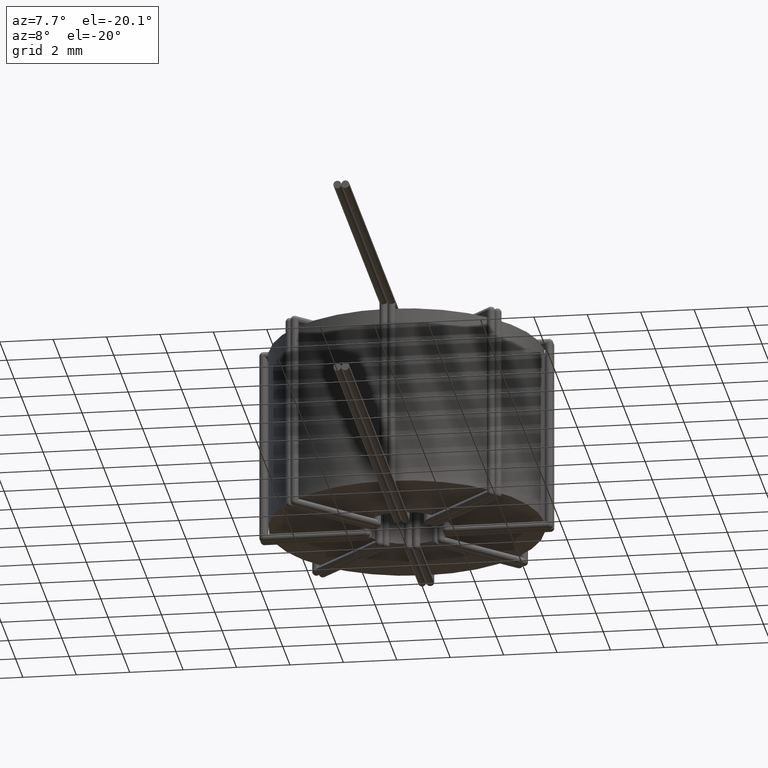
[diagram: clean part render]
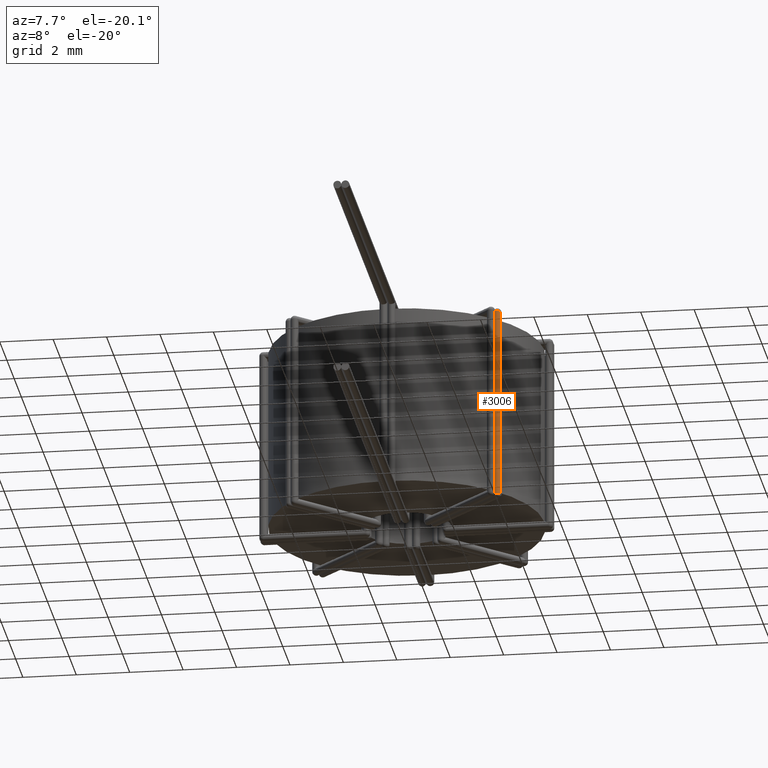
[diagram: same view with one face highlighted and labeled with its STEP entity id]
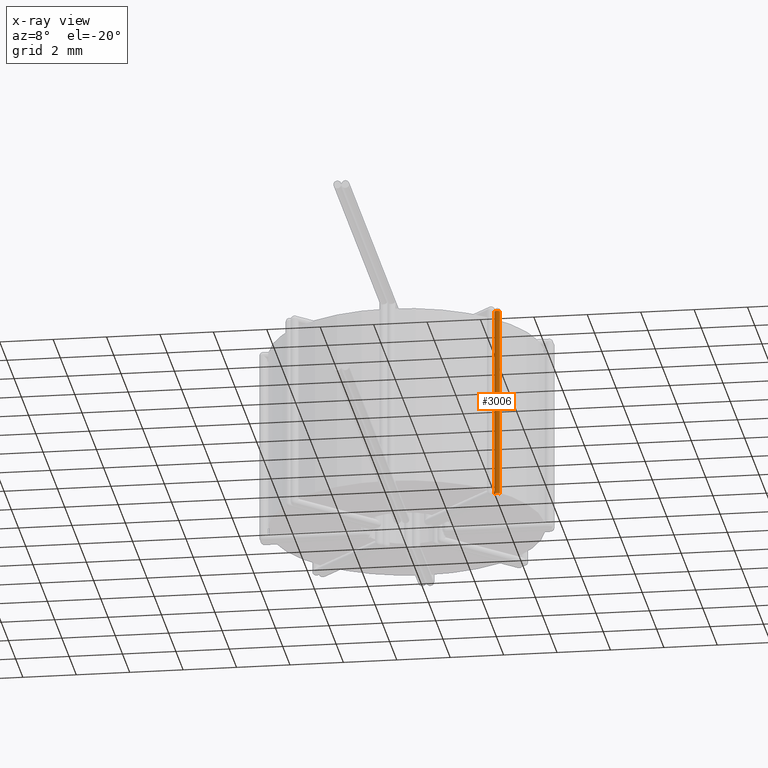
[diagram: x-ray of the same camera — body ghosted, the highlighted face saturated]
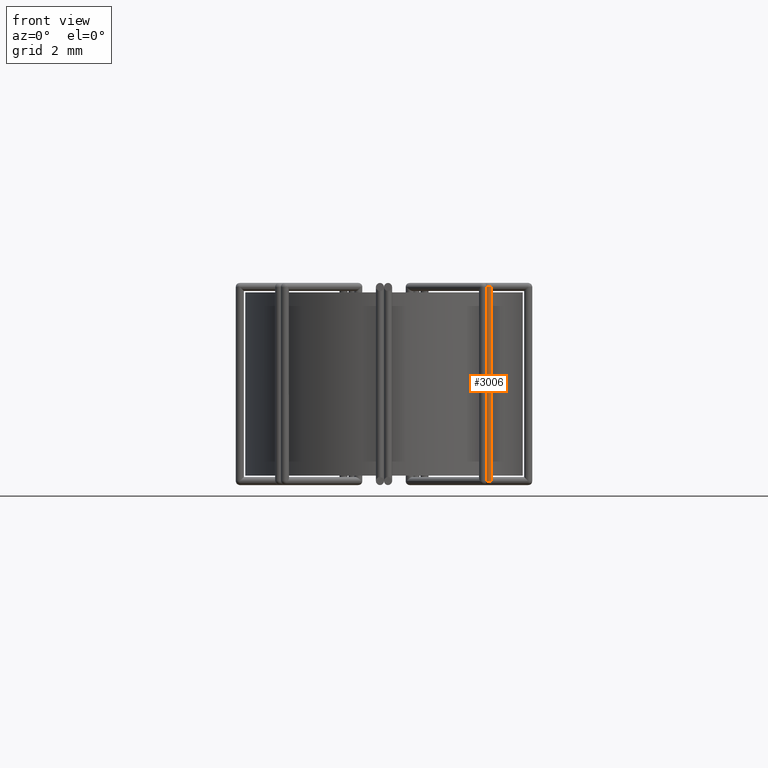
[diagram: same view with one face highlighted and labeled with its STEP entity id]
A machine part, auxiliary view. The second image highlights one B-rep face of the part: STEP entity #3006.
The next image is the same camera in x-ray: the body ghosted, the highlighted face saturated — about 0% of this face is hidden behind the body in this view.
A second angle (front view) of the same face is appended — the face is thin or edge-on in the first view.
In plain terms, the highlighted cylindrical surface (edge-blend (fillet) strip) has radius 0.15 mm, axis along (0, -0, -1).
Its self-contained STEP definition (entity closure, byte-faithful):
#403 = AXIS2_PLACEMENT_3D ( 'NONE', #7300, #7351, #12215 ) ;
#1283 = LINE ( 'NONE', #15095, #5876 ) ;
#1787 = CARTESIAN_POINT ( 'NONE',  ( 3.995153313704012700, -3.783021279348008000, 7.000000000000000000 ) ) ;
#1809 = DIRECTION ( 'NONE',  ( 8.177564888978038500E-017, -8.177564888977952300E-017, -1.000000000000000000 ) ) ;
#1933 = VERTEX_POINT ( 'NONE', #2452 ) ;
#2182 = CYLINDRICAL_SURFACE ( 'NONE', #15563, 0.1499999999999999100 ) ;
#2452 = CARTESIAN_POINT ( 'NONE',  ( 3.783021279348049800, -3.783021279348009800, -0.1999999999999995400 ) ) ;
#2536 = CARTESIAN_POINT ( 'NONE',  ( 3.889087296526030800, -3.676955262170027000, -0.1999999999999995400 ) ) ;
#2830 = DIRECTION ( 'NONE',  ( -8.177564888978038500E-017, 8.177564888977952300E-017, 1.000000000000000000 ) ) ;
#3006 = ADVANCED_FACE ( 'NONE', ( #8662 ), #2182, .T. ) ;
#3103 = DIRECTION ( 'NONE',  ( 0.7071067811865517900, -0.7071067811865431300, 1.156482317317873200E-016 ) ) ;
#3363 = CIRCLE ( 'NONE', #11501, 0.1499999999999999100 ) ;
#4006 = CARTESIAN_POINT ( 'NONE',  ( 3.783021279348048900, -3.783021279348009400, 7.150000000000000400 ) ) ;
#4153 = VERTEX_POINT ( 'NONE', #7178 ) ;
#4633 = ORIENTED_EDGE ( 'NONE', *, *, #15162, .F. ) ;
#5118 = LINE ( 'NONE', #4006, #15798 ) ;
#5562 = CARTESIAN_POINT ( 'NONE',  ( 3.889087296526030800, -3.676955262170027000, 6.187180397650613300E-016 ) ) ;
#5876 = VECTOR ( 'NONE', #8937, 1000.000000000000000 ) ;
#6497 = EDGE_CURVE ( 'NONE', #14918, #4153, #1283, .T. ) ;
#6759 = EDGE_LOOP ( 'NONE', ( #13896, #4633, #7047, #12427 ) ) ;
#7047 = ORIENTED_EDGE ( 'NONE', *, *, #11566, .F. ) ;
#7178 = CARTESIAN_POINT ( 'NONE',  ( 3.995153313704013600, -3.783021279348008500, -0.1999999999999995100 ) ) ;
#7300 = CARTESIAN_POINT ( 'NONE',  ( 3.889087296526029900, -3.676955262170026600, 7.000000000000000000 ) ) ;
#7308 = VERTEX_POINT ( 'NONE', #9024 ) ;
#7351 = DIRECTION ( 'NONE',  ( 0.0000000000000000000, 0.0000000000000000000, 1.000000000000000000 ) ) ;
#7396 = DIRECTION ( 'NONE',  ( 0.7071067811865517900, -0.7071067811865431300, 1.807003620809175100E-016 ) ) ;
#8662 = FACE_OUTER_BOUND ( 'NONE', #6759, .T. ) ;
#8937 = DIRECTION ( 'NONE',  ( 8.177564888978038500E-017, -8.177564888977952300E-017, -1.000000000000000000 ) ) ;
#8945 = EDGE_CURVE ( 'NONE', #4153, #1933, #3363, .T. ) ;
#9024 = CARTESIAN_POINT ( 'NONE',  ( 3.783021279348048900, -3.783021279348009400, 6.999999999999999100 ) ) ;
#11501 = AXIS2_PLACEMENT_3D ( 'NONE', #2536, #12278, #7396 ) ;
#11566 = EDGE_CURVE ( 'NONE', #1933, #7308, #5118, .T. ) ;
#12215 = DIRECTION ( 'NONE',  ( -0.7071067811865517900, 0.7071067811865431300, 0.0000000000000000000 ) ) ;
#12278 = DIRECTION ( 'NONE',  ( 1.277744513902818900E-016, -1.277744513902805400E-016, -1.000000000000000000 ) ) ;
#12427 = ORIENTED_EDGE ( 'NONE', *, *, #8945, .F. ) ;
#13896 = ORIENTED_EDGE ( 'NONE', *, *, #6497, .F. ) ;
#14918 = VERTEX_POINT ( 'NONE', #1787 ) ;
#15095 = CARTESIAN_POINT ( 'NONE',  ( 3.995153313704013600, -3.783021279348008500, -0.3499999999999995300 ) ) ;
#15162 = EDGE_CURVE ( 'NONE', #7308, #14918, #15740, .T. ) ;
#15563 = AXIS2_PLACEMENT_3D ( 'NONE', #5562, #1809, #3103 ) ;
#15740 = CIRCLE ( 'NONE', #403, 0.1499999999999999100 ) ;
#15798 = VECTOR ( 'NONE', #2830, 1000.000000000000000 ) ;